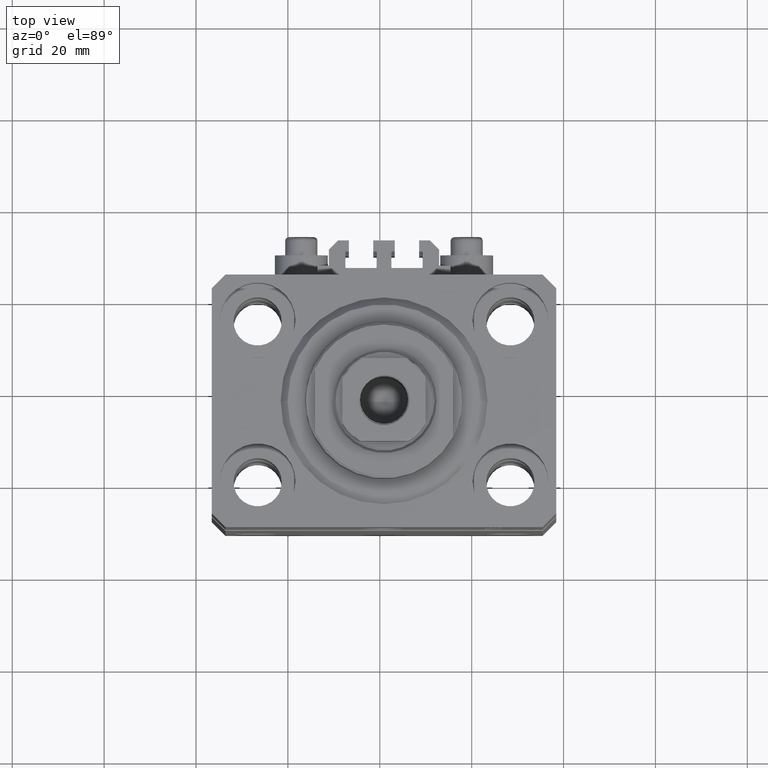
[diagram: clean part render]
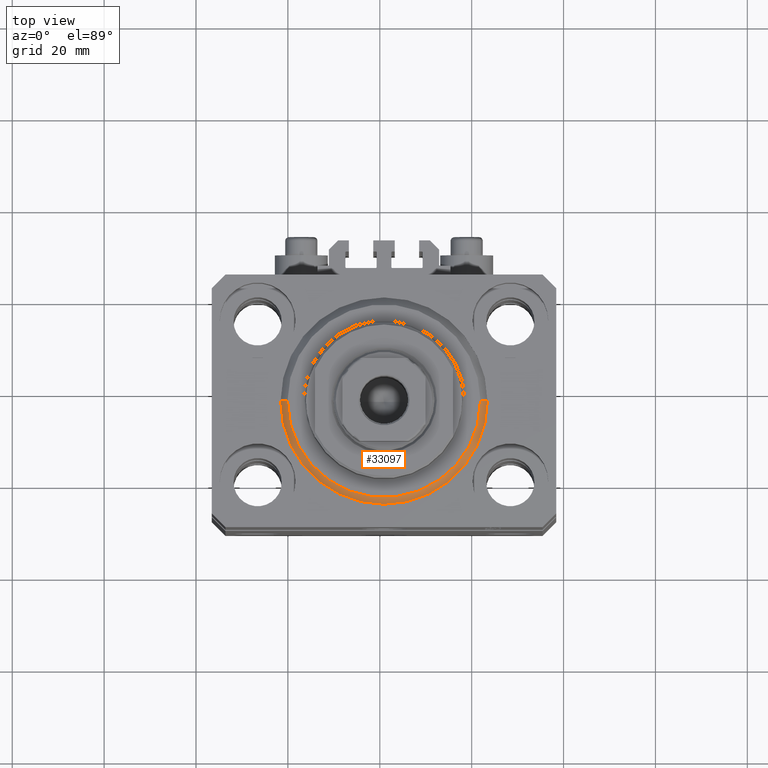
[diagram: same view with one face highlighted and labeled with its STEP entity id]
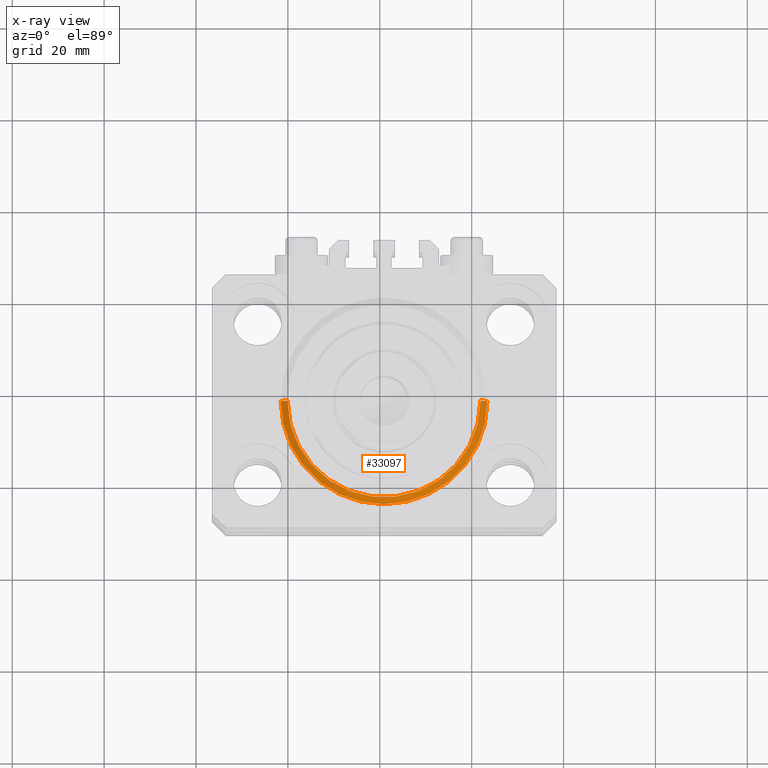
[diagram: x-ray of the same camera — body ghosted, the highlighted face saturated]
A machine part, top view. The second image highlights one B-rep face of the part: STEP entity #33097.
The next image is the same camera in x-ray: the body ghosted, the highlighted face saturated — about 0% of this face is hidden behind the body in this view.
In plain terms, the highlighted conical surface has half-angle 45 deg.
Its self-contained STEP definition (entity closure, byte-faithful):
#1903 = CIRCLE ( 'NONE', #41719, 20.99999999999998934 ) ;
#2066 = ORIENTED_EDGE ( 'NONE', *, *, #2174, .F. ) ;
#2174 = EDGE_CURVE ( 'NONE', #47288, #29089, #29313, .T. ) ;
#5404 = EDGE_CURVE ( 'NONE', #35244, #47288, #42193, .T. ) ;
#8591 = CARTESIAN_POINT ( 'NONE',  ( 0.000000000000000000, 0.000000000000000000, 1.500000000000001332 ) ) ;
#9294 = EDGE_LOOP ( 'NONE', ( #13943, #26148, #31983, #2066 ) ) ;
#9361 = DIRECTION ( 'NONE',  ( 0.7071067811865500152, 0.000000000000000000, 0.7071067811865451302 ) ) ;
#9943 = CARTESIAN_POINT ( 'NONE',  ( 0.000000000000000000, 0.000000000000000000, 1.500000000000001332 ) ) ;
#10311 = DIRECTION ( 'NONE',  ( -0.000000000000000000, -0.000000000000000000, -1.000000000000000000 ) ) ;
#10405 = DIRECTION ( 'NONE',  ( 1.000000000000000000, 0.000000000000000000, 0.000000000000000000 ) ) ;
#12962 = LINE ( 'NONE', #27544, #41648 ) ;
#13910 = CARTESIAN_POINT ( 'NONE',  ( 0.000000000000000000, 0.000000000000000000, 0.000000000000000000 ) ) ;
#13943 = ORIENTED_EDGE ( 'NONE', *, *, #5404, .F. ) ;
#14167 = VECTOR ( 'NONE', #20884, 1000.000000000000114 ) ;
#14464 = DIRECTION ( 'NONE',  ( -0.000000000000000000, -0.000000000000000000, 1.000000000000000000 ) ) ;
#14741 = CARTESIAN_POINT ( 'NONE',  ( -20.99999999999998934, 2.663606788145492628E-15, 0.000000000000000000 ) ) ;
#15623 = CONICAL_SURFACE ( 'NONE', #21722, 22.50000000000000355, 0.7853981633974517207 ) ;
#16247 = DIRECTION ( 'NONE',  ( -0.000000000000000000, -0.000000000000000000, 1.000000000000000000 ) ) ;
#18503 = VERTEX_POINT ( 'NONE', #35438 ) ;
#20884 = DIRECTION ( 'NONE',  ( -0.7071067811865500152, 8.659560562354963673E-17, 0.7071067811865451302 ) ) ;
#21552 = DIRECTION ( 'NONE',  ( 1.000000000000000000, 0.000000000000000000, 0.000000000000000000 ) ) ;
#21722 = AXIS2_PLACEMENT_3D ( 'NONE', #8591, #16247, #30122 ) ;
#22088 = CARTESIAN_POINT ( 'NONE',  ( -22.50000000000000355, 0.000000000000000000, 1.500000000000001332 ) ) ;
#26148 = ORIENTED_EDGE ( 'NONE', *, *, #38746, .F. ) ;
#27544 = CARTESIAN_POINT ( 'NONE',  ( 22.50000000000000355, 0.000000000000000000, 1.500000000000001332 ) ) ;
#29089 = VERTEX_POINT ( 'NONE', #35068 ) ;
#29313 = CIRCLE ( 'NONE', #38487, 22.50000000000000355 ) ;
#30122 = DIRECTION ( 'NONE',  ( 1.000000000000000000, 0.000000000000000000, 0.000000000000000000 ) ) ;
#31983 = ORIENTED_EDGE ( 'NONE', *, *, #37651, .T. ) ;
#33097 = ADVANCED_FACE ( 'NONE', ( #34434 ), #15623, .T. ) ;
#34434 = FACE_OUTER_BOUND ( 'NONE', #9294, .T. ) ;
#35068 = CARTESIAN_POINT ( 'NONE',  ( 22.50000000000000355, 2.755455298081545172E-15, 1.500000000000001332 ) ) ;
#35244 = VERTEX_POINT ( 'NONE', #14741 ) ;
#35438 = CARTESIAN_POINT ( 'NONE',  ( 20.99999999999998934, 0.000000000000000000, 0.000000000000000000 ) ) ;
#35480 = CARTESIAN_POINT ( 'NONE',  ( -22.50000000000000355, 2.755455298081545172E-15, 1.500000000000001332 ) ) ;
#37651 = EDGE_CURVE ( 'NONE', #18503, #29089, #12962, .T. ) ;
#38487 = AXIS2_PLACEMENT_3D ( 'NONE', #9943, #14464, #10405 ) ;
#38746 = EDGE_CURVE ( 'NONE', #18503, #35244, #1903, .T. ) ;
#41648 = VECTOR ( 'NONE', #9361, 1000.000000000000114 ) ;
#41719 = AXIS2_PLACEMENT_3D ( 'NONE', #13910, #10311, #21552 ) ;
#42193 = LINE ( 'NONE', #35480, #14167 ) ;
#47288 = VERTEX_POINT ( 'NONE', #22088 ) ;